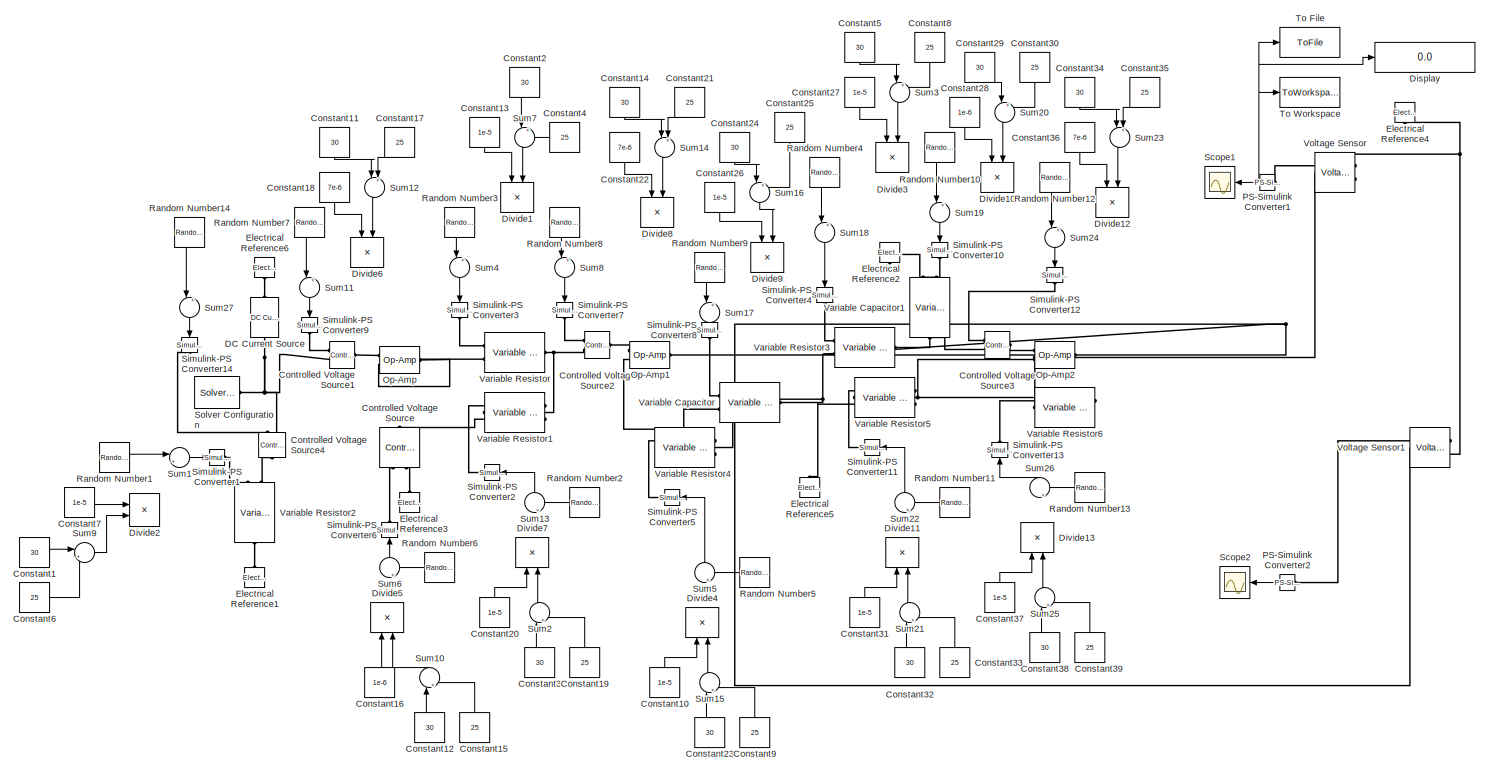
[diagram: root canvas - part 1/1, most of the canvas]
MODEL slx_a25b82de1913
KIND model
CONFIG AbsTol = auto
CONFIG EnableMultiTasking = off
CONFIG FixedStep = auto
CONFIG MaxStep = auto
CONFIG MinStep = auto
CONFIG RelTol = 1e-3
CONFIG SampleTimeConstraint = Unconstrained
CONFIG Solver = VariableStepAuto
CONFIG SolverName = VariableStepAuto
CONFIG StartTime = 0.0
CONFIG StopTime = 15.0
BLOCK [Constant] Constant1
  Value = 30
BLOCK [Constant] Constant10
  Value = 1e-5
BLOCK [Constant] Constant11
  Value = 30
BLOCK [Constant] Constant12
  Value = 30
BLOCK [Constant] Constant13
  Value = 1e-5
BLOCK [Constant] Constant14
  Value = 30
BLOCK [Constant] Constant15
  Value = 25
BLOCK [Constant] Constant16
  Value = 1e-6
BLOCK [Constant] Constant17
  Value = 25
BLOCK [Constant] Constant18
  Value = 7e-6
BLOCK [Constant] Constant19
  Value = 25
BLOCK [Constant] Constant2
  Value = 30
BLOCK [Constant] Constant20
  Value = 1e-5
BLOCK [Constant] Constant21
  Value = 25
BLOCK [Constant] Constant22
  Value = 7e-6
BLOCK [Constant] Constant23
  Value = 30
BLOCK [Constant] Constant24
  Value = 30
BLOCK [Constant] Constant25
  Value = 25
BLOCK [Constant] Constant26
  Value = 1e-5
BLOCK [Constant] Constant27
  Value = 1e-5
BLOCK [Constant] Constant28
  Value = 1e-6
BLOCK [Constant] Constant29
  Value = 30
BLOCK [Constant] Constant3
  Value = 30
BLOCK [Constant] Constant30
  Value = 25
BLOCK [Constant] Constant31
  Value = 1e-5
BLOCK [Constant] Constant32
  Value = 30
BLOCK [Constant] Constant33
  Value = 25
BLOCK [Constant] Constant34
  Value = 30
BLOCK [Constant] Constant35
  Value = 25
BLOCK [Constant] Constant36
  Value = 7e-6
BLOCK [Constant] Constant37
  Value = 1e-5
BLOCK [Constant] Constant38
  Value = 30
BLOCK [Constant] Constant39
  Value = 25
BLOCK [Constant] Constant4
  Value = 25
BLOCK [Constant] Constant5
  Value = 30
BLOCK [Constant] Constant6
  Value = 25
BLOCK [Constant] Constant7
  Value = 1e-5
BLOCK [Constant] Constant8
  Value = 25
BLOCK [Constant] Constant9
  Value = 25
BLOCK [Reference] Controlled Voltage Source  REF=fl_lib/Electrical/Electrical Sources/Controlled Voltage
Source
  Ports = [0, 0, 0, 0, 0, 1, 2]
  SourceBlock = fl_lib/Electrical/Electrical Sources/Controlled Voltage\nSource
  SourceProductBaseCode = SS
  SourceProductName = Simscape
  SourceType = Controlled Voltage\nSource
BLOCK [Reference] Controlled Voltage Source1  REF=fl_lib/Electrical/Electrical Sources/Controlled Voltage
Source
  Ports = [0, 0, 0, 0, 0, 1, 2]
  SourceBlock = fl_lib/Electrical/Electrical Sources/Controlled Voltage\nSource
  SourceProductBaseCode = SS
  SourceProductName = Simscape
  SourceType = Controlled Voltage\nSource
BLOCK [Reference] Controlled Voltage Source2  REF=fl_lib/Electrical/Electrical Sources/Controlled Voltage
Source
  Ports = [0, 0, 0, 0, 0, 1, 2]
  SourceBlock = fl_lib/Electrical/Electrical Sources/Controlled Voltage\nSource
  SourceProductBaseCode = SS
  SourceProductName = Simscape
  SourceType = Controlled Voltage\nSource
BLOCK [Reference] Controlled Voltage Source3  REF=fl_lib/Electrical/Electrical Sources/Controlled Voltage
Source
  Ports = [0, 0, 0, 0, 0, 1, 2]
  SourceBlock = fl_lib/Electrical/Electrical Sources/Controlled Voltage\nSource
  SourceProductBaseCode = SS
  SourceProductName = Simscape
  SourceType = Controlled Voltage\nSource
BLOCK [Reference] Controlled Voltage Source4  REF=fl_lib/Electrical/Electrical Sources/Controlled Voltage
Source
  Ports = [0, 0, 0, 0, 0, 1, 2]
  SourceBlock = fl_lib/Electrical/Electrical Sources/Controlled Voltage\nSource
  SourceProductBaseCode = SS
  SourceProductName = Simscape
  SourceType = Controlled Voltage\nSource
BLOCK [Reference] DC Current Source  REF=fl_lib/Electrical/Electrical Sources/DC Current Source
  Ports = [0, 0, 0, 0, 0, 1, 1]
  SourceBlock = fl_lib/Electrical/Electrical Sources/DC Current Source
  SourceProductBaseCode = SS
  SourceProductName = Simscape
  SourceType = DC Current Source
BLOCK [Display] Display
  Decimation = 1
  Format = long
  Ports = [1]
BLOCK [Product] Divide1
  InputSameDT = off
  Inputs = **
  OutDataTypeStr = Inherit: Inherit via internal rule
  Ports = [2, 1]
  RndMeth = Floor
  SaturateOnIntegerOverflow = off
BLOCK [Product] Divide10
  InputSameDT = off
  Inputs = **
  OutDataTypeStr = Inherit: Inherit via internal rule
  Ports = [2, 1]
  RndMeth = Floor
  SaturateOnIntegerOverflow = off
BLOCK [Product] Divide11
  InputSameDT = off
  Inputs = **
  OutDataTypeStr = Inherit: Inherit via internal rule
  Ports = [2, 1]
  RndMeth = Floor
  SaturateOnIntegerOverflow = off
BLOCK [Product] Divide12
  InputSameDT = off
  Inputs = **
  OutDataTypeStr = Inherit: Inherit via internal rule
  Ports = [2, 1]
  RndMeth = Floor
  SaturateOnIntegerOverflow = off
BLOCK [Product] Divide13
  InputSameDT = off
  Inputs = **
  OutDataTypeStr = Inherit: Inherit via internal rule
  Ports = [2, 1]
  RndMeth = Floor
  SaturateOnIntegerOverflow = off
BLOCK [Product] Divide2
  InputSameDT = off
  Inputs = **
  OutDataTypeStr = Inherit: Inherit via internal rule
  Ports = [2, 1]
  RndMeth = Floor
  SaturateOnIntegerOverflow = off
BLOCK [Product] Divide3
  InputSameDT = off
  Inputs = **
  OutDataTypeStr = Inherit: Inherit via internal rule
  Ports = [2, 1]
  RndMeth = Floor
  SaturateOnIntegerOverflow = off
BLOCK [Product] Divide4
  InputSameDT = off
  Inputs = **
  OutDataTypeStr = Inherit: Inherit via internal rule
  Ports = [2, 1]
  RndMeth = Floor
  SaturateOnIntegerOverflow = off
BLOCK [Product] Divide5
  InputSameDT = off
  Inputs = **
  OutDataTypeStr = Inherit: Inherit via internal rule
  Ports = [2, 1]
  RndMeth = Floor
  SaturateOnIntegerOverflow = off
BLOCK [Product] Divide6
  InputSameDT = off
  Inputs = **
  OutDataTypeStr = Inherit: Inherit via internal rule
  Ports = [2, 1]
  RndMeth = Floor
  SaturateOnIntegerOverflow = off
BLOCK [Product] Divide7
  InputSameDT = off
  Inputs = **
  OutDataTypeStr = Inherit: Inherit via internal rule
  Ports = [2, 1]
  RndMeth = Floor
  SaturateOnIntegerOverflow = off
BLOCK [Product] Divide8
  InputSameDT = off
  Inputs = **
  OutDataTypeStr = Inherit: Inherit via internal rule
  Ports = [2, 1]
  RndMeth = Floor
  SaturateOnIntegerOverflow = off
BLOCK [Product] Divide9
  InputSameDT = off
  Inputs = **
  OutDataTypeStr = Inherit: Inherit via internal rule
  Ports = [2, 1]
  RndMeth = Floor
  SaturateOnIntegerOverflow = off
BLOCK [Reference] Electrical Reference1  REF=fl_lib/Electrical/Electrical Elements/Electrical Reference
  Ports = [0, 0, 0, 0, 0, 1]
  SourceBlock = fl_lib/Electrical/Electrical Elements/Electrical Reference
  SourceProductBaseCode = SS
  SourceProductName = Simscape
  SourceType = Electrical Reference
BLOCK [Reference] Electrical Reference2  REF=fl_lib/Electrical/Electrical Elements/Electrical Reference
  Ports = [0, 0, 0, 0, 0, 1]
  SourceBlock = fl_lib/Electrical/Electrical Elements/Electrical Reference
  SourceProductBaseCode = SS
  SourceProductName = Simscape
  SourceType = Electrical Reference
BLOCK [Reference] Electrical Reference3  REF=fl_lib/Electrical/Electrical Elements/Electrical Reference
  Ports = [0, 0, 0, 0, 0, 1]
  SourceBlock = fl_lib/Electrical/Electrical Elements/Electrical Reference
  SourceProductBaseCode = SS
  SourceProductName = Simscape
  SourceType = Electrical Reference
BLOCK [Reference] Electrical Reference4  REF=fl_lib/Electrical/Electrical Elements/Electrical Reference
  Ports = [0, 0, 0, 0, 0, 1]
  SourceBlock = fl_lib/Electrical/Electrical Elements/Electrical Reference
  SourceProductBaseCode = SS
  SourceProductName = Simscape
  SourceType = Electrical Reference
BLOCK [Reference] Electrical Reference5  REF=fl_lib/Electrical/Electrical Elements/Electrical Reference
  Ports = [0, 0, 0, 0, 0, 1]
  SourceBlock = fl_lib/Electrical/Electrical Elements/Electrical Reference
  SourceProductBaseCode = SS
  SourceProductName = Simscape
  SourceType = Electrical Reference
BLOCK [Reference] Electrical Reference6  REF=fl_lib/Electrical/Electrical Elements/Electrical Reference
  Ports = [0, 0, 0, 0, 0, 1]
  SourceBlock = fl_lib/Electrical/Electrical Elements/Electrical Reference
  SourceProductBaseCode = SS
  SourceProductName = Simscape
  SourceType = Electrical Reference
BLOCK [Reference] Op-Amp  REF=fl_lib/Electrical/Electrical Elements/Op-Amp
  Ports = [0, 0, 0, 0, 0, 2, 1]
  SourceBlock = fl_lib/Electrical/Electrical Elements/Op-Amp
  SourceProductBaseCode = SS
  SourceProductName = Simscape
  SourceType = Op-Amp
BLOCK [Reference] Op-Amp1  REF=fl_lib/Electrical/Electrical Elements/Op-Amp
  Ports = [0, 0, 0, 0, 0, 2, 1]
  SourceBlock = fl_lib/Electrical/Electrical Elements/Op-Amp
  SourceProductBaseCode = SS
  SourceProductName = Simscape
  SourceType = Op-Amp
BLOCK [Reference] Op-Amp2  REF=fl_lib/Electrical/Electrical Elements/Op-Amp
  Ports = [0, 0, 0, 0, 0, 2, 1]
  SourceBlock = fl_lib/Electrical/Electrical Elements/Op-Amp
  SourceProductBaseCode = SS
  SourceProductName = Simscape
  SourceType = Op-Amp
BLOCK [Reference] PS-Simulink Converter1  REF=nesl_utility/PS-Simulink
Converter
  Ports = [0, 1, 0, 0, 0, 1]
  SourceBlock = nesl_utility/PS-Simulink\nConverter
  SourceProductBaseCode = SS
  SourceProductName = Simscape
  SourceType = PS-Simulink\nConverter
BLOCK [Reference] PS-Simulink Converter2  REF=nesl_utility/PS-Simulink
Converter
  Ports = [0, 1, 0, 0, 0, 1]
  SourceBlock = nesl_utility/PS-Simulink\nConverter
  SourceProductBaseCode = SS
  SourceProductName = Simscape
  SourceType = PS-Simulink\nConverter
BLOCK [RandomNumber] Random Number1
  Mean = 10
  SampleTime = 0.001
  Seed = 698
  Variance = 0.0
BLOCK [RandomNumber] Random Number10
  Mean = 5e-5
  SampleTime = 0.001
  Seed = 843
  Variance = 0.0
BLOCK [RandomNumber] Random Number11
  Mean = 1000000
  SampleTime = 0.001
  Seed = 231
  Variance = 0.0
BLOCK [RandomNumber] Random Number12
  SampleTime = 0.001
  Seed = 256
  Variance = 0.0
BLOCK [RandomNumber] Random Number13
  Mean = 1
  SampleTime = 0.001
  Seed = 508
  Variance = 0.0
BLOCK [RandomNumber] Random Number14
  SampleTime = 0.001
  Variance = 0
BLOCK [RandomNumber] Random Number2
  Mean = 10000
  SampleTime = 0.001
  Seed = 711
  Variance = 0.0
  VectorParams1D = off
BLOCK [RandomNumber] Random Number3
  Mean = 10000
  SampleTime = 0.001
  Seed = 980
  Variance = 0.0
BLOCK [RandomNumber] Random Number4
  Mean = 10000
  SampleTime = 0.001
  Seed = 395
  Variance = 0.0
BLOCK [RandomNumber] Random Number5
  Mean = 5100
  SampleTime = 0.001
  Seed = 162
  Variance = 0.0
BLOCK [RandomNumber] Random Number6
  Mean = 3.3
  SampleTime = 0.001
  Seed = 853
  Variance = 0.0
BLOCK [RandomNumber] Random Number7
  SampleTime = 0.001
  Seed = 320
  Variance = 0.0
BLOCK [RandomNumber] Random Number8
  SampleTime = 0.001
  Seed = 909
  Variance = 0.0
BLOCK [RandomNumber] Random Number9
  Mean = 1e-5
  SampleTime = 0.001
  Seed = 579
  Variance = 0.0
  VectorParams1D = off
BLOCK [Scope] Scope1
  Floating = off
  NumInputPorts = 1
  Ports = [1]
  ScopeSpecificationString = Simulink.scopes.TimeScopeBlockCfg('CurrentConfiguration', extmgr.ConfigurationSet(extmgr.Configuration('Core','General UI',true),extmgr.Configuration('Core','Source UI',true),extmgr.Configuration('Sources','WiredSimulink',true,'DataLoggingVariableName','ScopeData1'),extmgr.Configuration('Visuals','Time Domain',true,'SerializedDisplays',{struct('MinYLimReal','2.39988','MaxYLimReal','2.40002','YLabe...<+1795ch>
BLOCK [Scope] Scope2
  Floating = off
  NumInputPorts = 1
  Ports = [1]
  ScopeSpecificationString = Simulink.scopes.TimeScopeBlockCfg('CurrentConfiguration', extmgr.ConfigurationSet(extmgr.Configuration('Core','General UI',true),extmgr.Configuration('Core','Source UI',true),extmgr.Configuration('Sources','WiredSimulink',true,'DataLoggingVariableName','ScopeData1'),extmgr.Configuration('Visuals','Time Domain',true,'SerializedDisplays',{struct('MinYLimReal','2.39956','MaxYLimReal','2.40044','YLabe...<+1479ch>
BLOCK [Reference] Simulink-PS Converter1  REF=nesl_utility/Simulink-PS
Converter
  Ports = [1, 0, 0, 0, 0, 0, 1]
  SourceBlock = nesl_utility/Simulink-PS\nConverter
  SourceProductBaseCode = SS
  SourceProductName = Simscape
  SourceType = Simulink-PS\nConverter
BLOCK [Reference] Simulink-PS Converter10  REF=nesl_utility/Simulink-PS
Converter
  Ports = [1, 0, 0, 0, 0, 0, 1]
  SourceBlock = nesl_utility/Simulink-PS\nConverter
  SourceProductBaseCode = SS
  SourceProductName = Simscape
  SourceType = Simulink-PS\nConverter
BLOCK [Reference] Simulink-PS Converter11  REF=nesl_utility/Simulink-PS
Converter
  Ports = [1, 0, 0, 0, 0, 0, 1]
  SourceBlock = nesl_utility/Simulink-PS\nConverter
  SourceProductBaseCode = SS
  SourceProductName = Simscape
  SourceType = Simulink-PS\nConverter
BLOCK [Reference] Simulink-PS Converter12  REF=nesl_utility/Simulink-PS
Converter
  Ports = [1, 0, 0, 0, 0, 0, 1]
  SourceBlock = nesl_utility/Simulink-PS\nConverter
  SourceProductBaseCode = SS
  SourceProductName = Simscape
  SourceType = Simulink-PS\nConverter
BLOCK [Reference] Simulink-PS Converter13  REF=nesl_utility/Simulink-PS
Converter
  Ports = [1, 0, 0, 0, 0, 0, 1]
  SourceBlock = nesl_utility/Simulink-PS\nConverter
  SourceProductBaseCode = SS
  SourceProductName = Simscape
  SourceType = Simulink-PS\nConverter
BLOCK [Reference] Simulink-PS Converter14  REF=nesl_utility/Simulink-PS
Converter
  Ports = [1, 0, 0, 0, 0, 0, 1]
  SourceBlock = nesl_utility/Simulink-PS\nConverter
  SourceProductBaseCode = SS
  SourceProductName = Simscape
  SourceType = Simulink-PS\nConverter
BLOCK [Reference] Simulink-PS Converter2  REF=nesl_utility/Simulink-PS
Converter
  Ports = [1, 0, 0, 0, 0, 0, 1]
  SourceBlock = nesl_utility/Simulink-PS\nConverter
  SourceProductBaseCode = SS
  SourceProductName = Simscape
  SourceType = Simulink-PS\nConverter
BLOCK [Reference] Simulink-PS Converter3  REF=nesl_utility/Simulink-PS
Converter
  Ports = [1, 0, 0, 0, 0, 0, 1]
  SourceBlock = nesl_utility/Simulink-PS\nConverter
  SourceProductBaseCode = SS
  SourceProductName = Simscape
  SourceType = Simulink-PS\nConverter
BLOCK [Reference] Simulink-PS Converter4  REF=nesl_utility/Simulink-PS
Converter
  Ports = [1, 0, 0, 0, 0, 0, 1]
  SourceBlock = nesl_utility/Simulink-PS\nConverter
  SourceProductBaseCode = SS
  SourceProductName = Simscape
  SourceType = Simulink-PS\nConverter
BLOCK [Reference] Simulink-PS Converter5  REF=nesl_utility/Simulink-PS
Converter
  Ports = [1, 0, 0, 0, 0, 0, 1]
  SourceBlock = nesl_utility/Simulink-PS\nConverter
  SourceProductBaseCode = SS
  SourceProductName = Simscape
  SourceType = Simulink-PS\nConverter
BLOCK [Reference] Simulink-PS Converter6  REF=nesl_utility/Simulink-PS
Converter
  Ports = [1, 0, 0, 0, 0, 0, 1]
  SourceBlock = nesl_utility/Simulink-PS\nConverter
  SourceProductBaseCode = SS
  SourceProductName = Simscape
  SourceType = Simulink-PS\nConverter
BLOCK [Reference] Simulink-PS Converter7  REF=nesl_utility/Simulink-PS
Converter
  Ports = [1, 0, 0, 0, 0, 0, 1]
  SourceBlock = nesl_utility/Simulink-PS\nConverter
  SourceProductBaseCode = SS
  SourceProductName = Simscape
  SourceType = Simulink-PS\nConverter
BLOCK [Reference] Simulink-PS Converter8  REF=nesl_utility/Simulink-PS
Converter
  Ports = [1, 0, 0, 0, 0, 0, 1]
  SourceBlock = nesl_utility/Simulink-PS\nConverter
  SourceProductBaseCode = SS
  SourceProductName = Simscape
  SourceType = Simulink-PS\nConverter
BLOCK [Reference] Simulink-PS Converter9  REF=nesl_utility/Simulink-PS
Converter
  Ports = [1, 0, 0, 0, 0, 0, 1]
  SourceBlock = nesl_utility/Simulink-PS\nConverter
  SourceProductBaseCode = SS
  SourceProductName = Simscape
  SourceType = Simulink-PS\nConverter
BLOCK [Reference] Solver Configuration  REF=nesl_utility/Solver
Configuration
  Ports = [0, 0, 0, 0, 0, 0, 1]
  SourceBlock = nesl_utility/Solver\nConfiguration
  SourceProductBaseCode = SS
  SourceProductName = Simscape
  SourceType = Solver\nConfiguration
BLOCK [Sum] Sum1
  IconShape = round
  InputSameDT = off
  Inputs = |++
  OutDataTypeStr = Inherit: Inherit via internal rule
  Ports = [2, 1]
  SaturateOnIntegerOverflow = off
BLOCK [Sum] Sum10
  IconShape = round
  InputSameDT = off
  Inputs = |+-
  OutDataTypeStr = Inherit: Inherit via internal rule
  Ports = [2, 1]
  SaturateOnIntegerOverflow = off
BLOCK [Sum] Sum11
  IconShape = round
  InputSameDT = off
  Inputs = |++
  OutDataTypeStr = Inherit: Inherit via internal rule
  Ports = [2, 1]
  SaturateOnIntegerOverflow = off
BLOCK [Sum] Sum12
  IconShape = round
  InputSameDT = off
  Inputs = |+-
  OutDataTypeStr = Inherit: Inherit via internal rule
  Ports = [2, 1]
  SaturateOnIntegerOverflow = off
BLOCK [Sum] Sum13
  IconShape = round
  InputSameDT = off
  Inputs = |++
  OutDataTypeStr = Inherit: Inherit via internal rule
  Ports = [2, 1]
  SaturateOnIntegerOverflow = off
BLOCK [Sum] Sum14
  IconShape = round
  InputSameDT = off
  Inputs = |+-
  OutDataTypeStr = Inherit: Inherit via internal rule
  Ports = [2, 1]
  SaturateOnIntegerOverflow = off
BLOCK [Sum] Sum15
  IconShape = round
  InputSameDT = off
  Inputs = |+-
  OutDataTypeStr = Inherit: Inherit via internal rule
  Ports = [2, 1]
  SaturateOnIntegerOverflow = off
BLOCK [Sum] Sum16
  IconShape = round
  InputSameDT = off
  Inputs = |+-
  OutDataTypeStr = Inherit: Inherit via internal rule
  Ports = [2, 1]
  SaturateOnIntegerOverflow = off
BLOCK [Sum] Sum17
  IconShape = round
  InputSameDT = off
  Inputs = |++
  OutDataTypeStr = Inherit: Inherit via internal rule
  Ports = [2, 1]
  SaturateOnIntegerOverflow = off
BLOCK [Sum] Sum18
  IconShape = round
  InputSameDT = off
  Inputs = |++
  OutDataTypeStr = Inherit: Inherit via internal rule
  Ports = [2, 1]
  SaturateOnIntegerOverflow = off
BLOCK [Sum] Sum19
  IconShape = round
  InputSameDT = off
  Inputs = |++
  OutDataTypeStr = Inherit: Inherit via internal rule
  Ports = [2, 1]
  SaturateOnIntegerOverflow = off
BLOCK [Sum] Sum2
  IconShape = round
  InputSameDT = off
  Inputs = |+-
  OutDataTypeStr = Inherit: Inherit via internal rule
  Ports = [2, 1]
  SaturateOnIntegerOverflow = off
BLOCK [Sum] Sum20
  IconShape = round
  InputSameDT = off
  Inputs = |+-
  OutDataTypeStr = Inherit: Inherit via internal rule
  Ports = [2, 1]
  SaturateOnIntegerOverflow = off
BLOCK [Sum] Sum21
  IconShape = round
  InputSameDT = off
  Inputs = |+-
  OutDataTypeStr = Inherit: Inherit via internal rule
  Ports = [2, 1]
  SaturateOnIntegerOverflow = off
BLOCK [Sum] Sum22
  IconShape = round
  InputSameDT = off
  Inputs = |++
  OutDataTypeStr = Inherit: Inherit via internal rule
  Ports = [2, 1]
  SaturateOnIntegerOverflow = off
BLOCK [Sum] Sum23
  IconShape = round
  InputSameDT = off
  Inputs = |+-
  OutDataTypeStr = Inherit: Inherit via internal rule
  Ports = [2, 1]
  SaturateOnIntegerOverflow = off
BLOCK [Sum] Sum24
  IconShape = round
  InputSameDT = off
  Inputs = |++
  OutDataTypeStr = Inherit: Inherit via internal rule
  Ports = [2, 1]
  SaturateOnIntegerOverflow = off
BLOCK [Sum] Sum25
  IconShape = round
  InputSameDT = off
  Inputs = |+-
  OutDataTypeStr = Inherit: Inherit via internal rule
  Ports = [2, 1]
  SaturateOnIntegerOverflow = off
BLOCK [Sum] Sum26
  IconShape = round
  InputSameDT = off
  Inputs = |++
  OutDataTypeStr = Inherit: Inherit via internal rule
  Ports = [2, 1]
  SaturateOnIntegerOverflow = off
BLOCK [Sum] Sum27
  IconShape = round
  InputSameDT = off
  Inputs = |++
  OutDataTypeStr = Inherit: Inherit via internal rule
  Ports = [2, 1]
  SaturateOnIntegerOverflow = off
BLOCK [Sum] Sum3
  IconShape = round
  InputSameDT = off
  Inputs = |+-
  OutDataTypeStr = Inherit: Inherit via internal rule
  Ports = [2, 1]
  SaturateOnIntegerOverflow = off
BLOCK [Sum] Sum4
  IconShape = round
  InputSameDT = off
  Inputs = |++
  OutDataTypeStr = Inherit: Inherit via internal rule
  Ports = [2, 1]
  SaturateOnIntegerOverflow = off
BLOCK [Sum] Sum5
  IconShape = round
  InputSameDT = off
  Inputs = |++
  OutDataTypeStr = Inherit: Inherit via internal rule
  Ports = [2, 1]
  SaturateOnIntegerOverflow = off
BLOCK [Sum] Sum6
  IconShape = round
  InputSameDT = off
  Inputs = |++
  OutDataTypeStr = Inherit: Inherit via internal rule
  Ports = [2, 1]
  SaturateOnIntegerOverflow = off
BLOCK [Sum] Sum7
  IconShape = round
  InputSameDT = off
  Inputs = |+-
  OutDataTypeStr = Inherit: Inherit via internal rule
  Ports = [2, 1]
  SaturateOnIntegerOverflow = off
BLOCK [Sum] Sum8
  IconShape = round
  InputSameDT = off
  Inputs = |++
  OutDataTypeStr = Inherit: Inherit via internal rule
  Ports = [2, 1]
  SaturateOnIntegerOverflow = off
BLOCK [Sum] Sum9
  IconShape = round
  InputSameDT = off
  Inputs = |+-
  OutDataTypeStr = Inherit: Inherit via internal rule
  Ports = [2, 1]
  SaturateOnIntegerOverflow = off
BLOCK [ToFile] To File
  Filename = u.mat
  Ports = [1]
BLOCK [ToWorkspace] To Workspace
  FixptAsFi = on
  MaxDataPoints = 100000
  Ports = [1]
  SampleTime = -1
  Save2DSignal = 2-D array (concatenate along first dimension)
  VariableName = u
BLOCK [Reference] Variable Capacitor  REF=elec_lib/Passive Devices/Variable Capacitor
  Ports = [0, 0, 0, 0, 0, 2, 1]
  SourceBlock = elec_lib/Passive Devices/Variable Capacitor
  SourceProductBaseCode = SN
  SourceProductName = Simscape Electronics
  SourceType = Variable Capacitor
BLOCK [Reference] Variable Capacitor1  REF=elec_lib/Passive Devices/Variable Capacitor
  Ports = [0, 0, 0, 0, 0, 2, 1]
  SourceBlock = elec_lib/Passive Devices/Variable Capacitor
  SourceProductBaseCode = SN
  SourceProductName = Simscape Electronics
  SourceType = Variable Capacitor
BLOCK [Reference] Variable Resistor  REF=fl_lib/Electrical/Electrical Elements/Variable Resistor
  Ports = [0, 0, 0, 0, 0, 2, 1]
  SourceBlock = fl_lib/Electrical/Electrical Elements/Variable Resistor
  SourceProductBaseCode = SS
  SourceProductName = Simscape
  SourceType = Variable Resistor
BLOCK [Reference] Variable Resistor1  REF=fl_lib/Electrical/Electrical Elements/Variable Resistor
  Ports = [0, 0, 0, 0, 0, 2, 1]
  SourceBlock = fl_lib/Electrical/Electrical Elements/Variable Resistor
  SourceProductBaseCode = SS
  SourceProductName = Simscape
  SourceType = Variable Resistor
BLOCK [Reference] Variable Resistor2  REF=fl_lib/Electrical/Electrical Elements/Variable Resistor
  Ports = [0, 0, 0, 0, 0, 2, 1]
  SourceBlock = fl_lib/Electrical/Electrical Elements/Variable Resistor
  SourceProductBaseCode = SS
  SourceProductName = Simscape
  SourceType = Variable Resistor
BLOCK [Reference] Variable Resistor3  REF=fl_lib/Electrical/Electrical Elements/Variable Resistor
  Ports = [0, 0, 0, 0, 0, 2, 1]
  SourceBlock = fl_lib/Electrical/Electrical Elements/Variable Resistor
  SourceProductBaseCode = SS
  SourceProductName = Simscape
  SourceType = Variable Resistor
BLOCK [Reference] Variable Resistor4  REF=fl_lib/Electrical/Electrical Elements/Variable Resistor
  Ports = [0, 0, 0, 0, 0, 2, 1]
  SourceBlock = fl_lib/Electrical/Electrical Elements/Variable Resistor
  SourceProductBaseCode = SS
  SourceProductName = Simscape
  SourceType = Variable Resistor
BLOCK [Reference] Variable Resistor5  REF=fl_lib/Electrical/Electrical Elements/Variable Resistor
  Ports = [0, 0, 0, 0, 0, 2, 1]
  SourceBlock = fl_lib/Electrical/Electrical Elements/Variable Resistor
  SourceProductBaseCode = SS
  SourceProductName = Simscape
  SourceType = Variable Resistor
BLOCK [Reference] Variable Resistor6  REF=fl_lib/Electrical/Electrical Elements/Variable Resistor
  Ports = [0, 0, 0, 0, 0, 2, 1]
  SourceBlock = fl_lib/Electrical/Electrical Elements/Variable Resistor
  SourceProductBaseCode = SS
  SourceProductName = Simscape
  SourceType = Variable Resistor
BLOCK [Reference] Voltage Sensor  REF=fl_lib/Electrical/Electrical Sensors/Voltage Sensor
  Ports = [0, 0, 0, 0, 0, 1, 2]
  SourceBlock = fl_lib/Electrical/Electrical Sensors/Voltage Sensor
  SourceProductBaseCode = SS
  SourceProductName = Simscape
  SourceType = Voltage Sensor
BLOCK [Reference] Voltage Sensor1  REF=fl_lib/Electrical/Electrical Sensors/Voltage Sensor
  Ports = [0, 0, 0, 0, 0, 1, 2]
  SourceBlock = fl_lib/Electrical/Electrical Sensors/Voltage Sensor
  SourceProductBaseCode = SS
  SourceProductName = Simscape
  SourceType = Voltage Sensor
LINE Constant10:1 -> Divide4:1
LINE Constant11:1 -> Sum12:1
LINE Constant12:1 -> Sum10:1
LINE Constant13:1 -> Divide1:1
LINE Constant14:1 -> Sum14:1
LINE Constant15:1 -> Sum10:2
LINE Constant16:1 -> Divide5:1
LINE Constant17:1 -> Sum12:2
LINE Constant18:1 -> Divide6:1
LINE Constant19:1 -> Sum2:2
LINE Constant1:1 -> Sum9:1
LINE Constant20:1 -> Divide7:1
LINE Constant21:1 -> Sum14:2
LINE Constant22:1 -> Divide8:1
LINE Constant23:1 -> Sum15:1
LINE Constant24:1 -> Sum16:1
LINE Constant25:1 -> Sum16:2
LINE Constant26:1 -> Divide9:1
LINE Constant27:1 -> Divide3:1
LINE Constant28:1 -> Divide10:1
LINE Constant29:1 -> Sum20:1
LINE Constant2:1 -> Sum7:1
LINE Constant30:1 -> Sum20:2
LINE Constant31:1 -> Divide11:1
LINE Constant32:1 -> Sum21:1
LINE Constant33:1 -> Sum21:2
LINE Constant34:1 -> Sum23:1
LINE Constant35:1 -> Sum23:2
LINE Constant36:1 -> Divide12:1
LINE Constant37:1 -> Divide13:1
LINE Constant38:1 -> Sum25:1
LINE Constant39:1 -> Sum25:2
LINE Constant3:1 -> Sum2:1
LINE Constant4:1 -> Sum7:2
LINE Constant5:1 -> Sum3:1
LINE Constant6:1 -> Sum9:2
LINE Constant7:1 -> Divide2:1
LINE Constant8:1 -> Sum3:2
LINE Constant9:1 -> Sum15:2
NET PS-Simulink Converter1:1 -> Display:1, Scope1:1, To File:1, To Workspace:1
LINE PS-Simulink Converter2:1 -> Scope2:1
LINE Random Number10:1 -> Sum19:1
LINE Random Number11:1 -> Sum22:2
LINE Random Number12:1 -> Sum24:1
LINE Random Number13:1 -> Sum26:2
LINE Random Number14:1 -> Sum27:1
LINE Random Number1:1 -> Sum1:1
LINE Random Number2:1 -> Sum13:2
LINE Random Number3:1 -> Sum4:1
LINE Random Number4:1 -> Sum18:1
LINE Random Number5:1 -> Sum5:2
LINE Random Number6:1 -> Sum6:2
LINE Random Number7:1 -> Sum11:1
LINE Random Number8:1 -> Sum8:1
LINE Random Number9:1 -> Sum17:1
LINE Sum10:1 -> Divide5:2
LINE Sum11:1 -> Simulink-PS Converter9:1
LINE Sum12:1 -> Divide6:2
LINE Sum13:1 -> Simulink-PS Converter2:1
LINE Sum14:1 -> Divide8:2
LINE Sum15:1 -> Divide4:2
LINE Sum16:1 -> Divide9:2
LINE Sum17:1 -> Simulink-PS Converter8:1
LINE Sum18:1 -> Simulink-PS Converter4:1
LINE Sum19:1 -> Simulink-PS Converter10:1
LINE Sum1:1 -> Simulink-PS Converter1:1
LINE Sum20:1 -> Divide10:2
LINE Sum21:1 -> Divide11:2
LINE Sum22:1 -> Simulink-PS Converter11:1
LINE Sum23:1 -> Divide12:2
LINE Sum24:1 -> Simulink-PS Converter12:1
LINE Sum25:1 -> Divide13:2
LINE Sum26:1 -> Simulink-PS Converter13:1
LINE Sum27:1 -> Simulink-PS Converter14:1
LINE Sum2:1 -> Divide7:2
LINE Sum3:1 -> Divide3:2
LINE Sum4:1 -> Simulink-PS Converter3:1
LINE Sum5:1 -> Simulink-PS Converter5:1
LINE Sum6:1 -> Simulink-PS Converter6:1
LINE Sum7:1 -> Divide1:2
LINE Sum8:1 -> Simulink-PS Converter7:1
LINE Sum9:1 -> Divide2:2
PLINE Controlled Voltage Source1:LConn1 -- Op-Amp:LConn1
PLINE Controlled Voltage Source1:RConn1 -- Simulink-PS Converter9:RConn1
PNET net1: Controlled Voltage Source1:RConn2 -- Controlled Voltage Source4:RConn2 -- DC Current Source:LConn1 -- Solver Configuration:RConn1
PLINE Controlled Voltage Source2:LConn1 -- Op-Amp1:LConn1
PLINE Controlled Voltage Source2:RConn1 -- Simulink-PS Converter7:RConn1
PNET net2: Controlled Voltage Source2:RConn2 -- Variable Resistor1:RConn1 -- Variable Resistor:RConn1
PLINE Controlled Voltage Source3:LConn1 -- Op-Amp2:LConn1
PLINE Controlled Voltage Source3:RConn1 -- Simulink-PS Converter12:RConn1
PNET net3: Controlled Voltage Source3:RConn2 -- Variable Capacitor1:RConn1 -- Variable Resistor3:RConn1
PLINE Controlled Voltage Source4:LConn1 -- Variable Resistor2:LConn2
PLINE Controlled Voltage Source4:RConn1 -- Simulink-PS Converter14:RConn1
PLINE Controlled Voltage Source:LConn1 -- Variable Resistor1:LConn2
PLINE Controlled Voltage Source:RConn1 -- Simulink-PS Converter6:RConn1
PLINE Controlled Voltage Source:RConn2 -- Electrical Reference3:LConn1
PLINE DC Current Source:RConn1 -- Electrical Reference6:LConn1
PLINE Electrical Reference1:LConn1 -- Variable Resistor2:RConn1
PLINE Electrical Reference2:LConn1 -- Variable Capacitor1:LConn2
PNET net4: Electrical Reference4:LConn1 -- Voltage Sensor1:RConn2 -- Voltage Sensor:RConn2
PLINE Electrical Reference5:LConn1 -- Variable Resistor5:LConn2
PNET net5: Op-Amp1:LConn2 -- Variable Capacitor:LConn2 -- Variable Resistor4:LConn2
PNET net6: Op-Amp1:RConn1 -- Variable Capacitor:RConn1 -- Variable Resistor3:LConn2 -- Variable Resistor4:RConn1 -- Voltage Sensor1:LConn1
PNET net7: Op-Amp2:LConn2 -- Variable Resistor5:RConn1 -- Variable Resistor6:LConn2
PNET net8: Op-Amp2:RConn1 -- Variable Resistor6:RConn1 -- Voltage Sensor:LConn1
PNET net9: Op-Amp:LConn2 -- Op-Amp:RConn1 -- Variable Resistor:LConn2
PLINE PS-Simulink Converter1:LConn1 -- Voltage Sensor:RConn1
PLINE PS-Simulink Converter2:LConn1 -- Voltage Sensor1:RConn1
PLINE Simulink-PS Converter10:RConn1 -- Variable Capacitor1:LConn1
PLINE Simulink-PS Converter11:RConn1 -- Variable Resistor5:LConn1
PLINE Simulink-PS Converter13:RConn1 -- Variable Resistor6:LConn1
PLINE Simulink-PS Converter1:RConn1 -- Variable Resistor2:LConn1
PLINE Simulink-PS Converter2:RConn1 -- Variable Resistor1:LConn1
PLINE Simulink-PS Converter3:RConn1 -- Variable Resistor:LConn1
PLINE Simulink-PS Converter4:RConn1 -- Variable Resistor3:LConn1
PLINE Simulink-PS Converter5:RConn1 -- Variable Resistor4:LConn1
PLINE Simulink-PS Converter8:RConn1 -- Variable Capacitor:LConn1
note: NET lines group one-source signal fan-out (src -> all destinations, sorted); 1:1 wires keep LINE; PNET lines group multi-terminal physical nets as a canonical sorted terminal list (undirected conserving connections); 2-terminal nets keep the pairwise PLINE form
